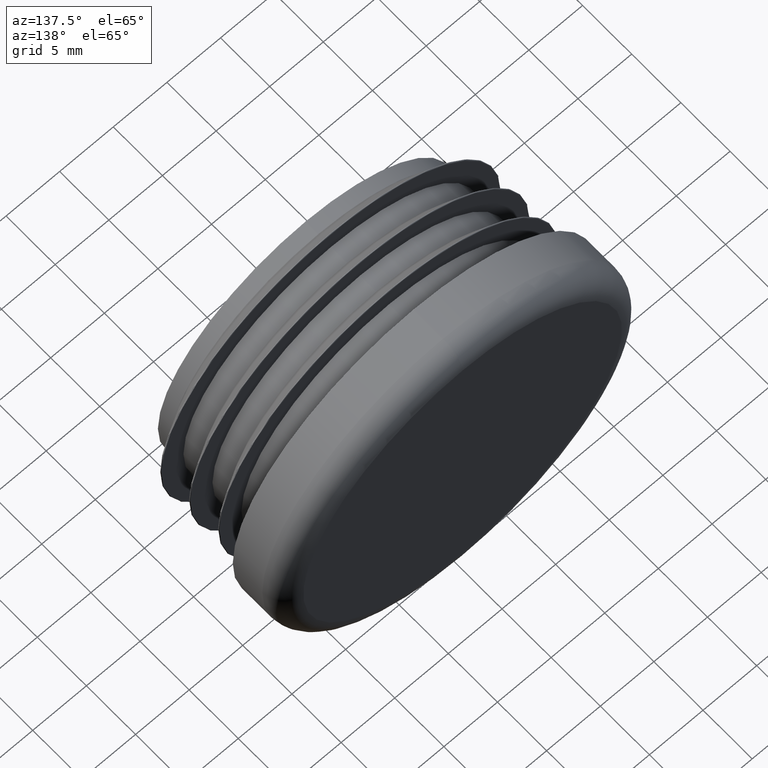
[diagram: clean part render]
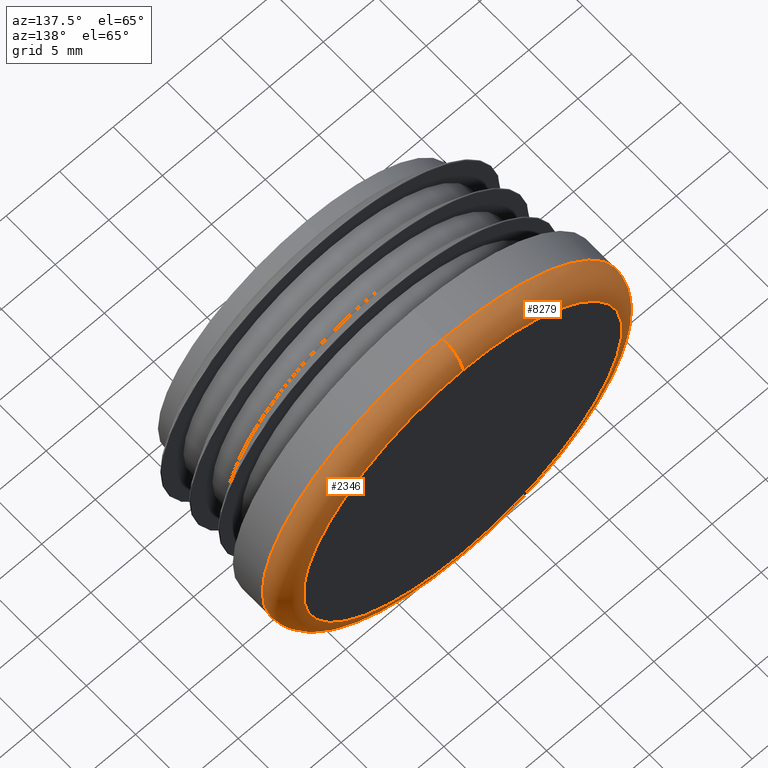
[diagram: same view with one multi-face feature highlighted, each face labeled with its STEP entity id]
A machine part, auxiliary view. The highlighted faces form ONE feature: a constant-radius fillet chain: 2 tangent blend faces with common blend radius 2 mm. The faces share edges in the B-rep.
Their STEP definitions:
[1] entity #8279 (Torus):
#10 = EDGE_LOOP ( 'NONE', ( #4776, #10278, #2202, #7090 ) ) ;
#101 = AXIS2_PLACEMENT_3D ( 'NONE', #623, #1616, #3421 ) ;
#321 = AXIS2_PLACEMENT_3D ( 'NONE', #9096, #9946, #2312 ) ;
#378 = DIRECTION ( 'NONE',  ( -1.000000000000000000, 0.000000000000000000, 0.000000000000000000 ) ) ;
#504 = EDGE_CURVE ( 'NONE', #12208, #5015, #625, .T. ) ;
#623 = CARTESIAN_POINT ( 'NONE',  ( 0.000000000000000000, 14.00000000000000000, 0.000000000000000000 ) ) ;
#625 = CIRCLE ( 'NONE', #3067, 2.000000000000000000 ) ;
#1086 = DIRECTION ( 'NONE',  ( 0.000000000000000000, 0.000000000000000000, 1.000000000000000000 ) ) ;
#1560 = CARTESIAN_POINT ( 'NONE',  ( 1.941065176648554701E-15, 16.00000000000000000, -14.84999999999999609 ) ) ;
#1616 = DIRECTION ( 'NONE',  ( 0.000000000000000000, 1.000000000000000000, 0.000000000000000000 ) ) ;
#2202 = ORIENTED_EDGE ( 'NONE', *, *, #504, .T. ) ;
#2292 = TOROIDAL_SURFACE ( 'NONE', #101, 14.84999999999999609, 2.000000000000000000 ) ;
#2295 = CARTESIAN_POINT ( 'NONE',  ( 0.000000000000000000, 16.00000000000000000, 0.000000000000000000 ) ) ;
#2312 = DIRECTION ( 'NONE',  ( 1.224646799147352468E-16, 0.000000000000000000, -1.000000000000000000 ) ) ;
#2967 = CARTESIAN_POINT ( 'NONE',  ( 0.000000000000000000, 14.00000000000000000, -16.84999999999999787 ) ) ;
#3057 = CIRCLE ( 'NONE', #11079, 16.84999999999999787 ) ;
#3067 = AXIS2_PLACEMENT_3D ( 'NONE', #10930, #378, #11849 ) ;
#3182 = VERTEX_POINT ( 'NONE', #1560 ) ;
#3421 = DIRECTION ( 'NONE',  ( 0.000000000000000000, 0.000000000000000000, 1.000000000000000000 ) ) ;
#3972 = DIRECTION ( 'NONE',  ( 0.000000000000000000, 1.000000000000000000, 0.000000000000000000 ) ) ;
#4146 = EDGE_CURVE ( 'NONE', #4533, #3182, #5230, .T. ) ;
#4240 = DIRECTION ( 'NONE',  ( 0.000000000000000000, 0.000000000000000000, 1.000000000000000000 ) ) ;
#4533 = VERTEX_POINT ( 'NONE', #2967 ) ;
#4776 = ORIENTED_EDGE ( 'NONE', *, *, #4146, .F. ) ;
#5015 = VERTEX_POINT ( 'NONE', #10395 ) ;
#5230 = CIRCLE ( 'NONE', #321, 2.000000000000000000 ) ;
#5844 = CARTESIAN_POINT ( 'NONE',  ( 0.000000000000000000, 14.00000000000000000, 0.000000000000000000 ) ) ;
#6135 = EDGE_CURVE ( 'NONE', #12208, #4533, #3057, .T. ) ;
#7090 = ORIENTED_EDGE ( 'NONE', *, *, #11282, .F. ) ;
#7760 = DIRECTION ( 'NONE',  ( -0.000000000000000000, -1.000000000000000000, -0.000000000000000000 ) ) ;
#8279 = ADVANCED_FACE ( 'NONE', ( #12148 ), #2292, .T. ) ;
#9096 = CARTESIAN_POINT ( 'NONE',  ( 1.818600496733819159E-15, 14.00000000000000000, -14.84999999999999609 ) ) ;
#9631 = AXIS2_PLACEMENT_3D ( 'NONE', #2295, #3972, #4240 ) ;
#9946 = DIRECTION ( 'NONE',  ( 1.000000000000000000, -0.000000000000000000, 1.224646799147353207E-16 ) ) ;
#10278 = ORIENTED_EDGE ( 'NONE', *, *, #6135, .F. ) ;
#10395 = CARTESIAN_POINT ( 'NONE',  ( 0.000000000000000000, 16.00000000000000000, 14.84999999999999609 ) ) ;
#10930 = CARTESIAN_POINT ( 'NONE',  ( 0.000000000000000000, 14.00000000000000000, 14.84999999999999609 ) ) ;
#11079 = AXIS2_PLACEMENT_3D ( 'NONE', #5844, #7760, #1086 ) ;
#11126 = CARTESIAN_POINT ( 'NONE',  ( 2.063529856563289455E-15, 14.00000000000000000, 16.84999999999999787 ) ) ;
#11192 = CIRCLE ( 'NONE', #9631, 14.84999999999999609 ) ;
#11282 = EDGE_CURVE ( 'NONE', #3182, #5015, #11192, .T. ) ;
#11849 = DIRECTION ( 'NONE',  ( 0.000000000000000000, 0.000000000000000000, 1.000000000000000000 ) ) ;
#12148 = FACE_OUTER_BOUND ( 'NONE', #10, .T. ) ;
#12208 = VERTEX_POINT ( 'NONE', #11126 ) ;
[2] entity #2346 (Torus):
#309 = TOROIDAL_SURFACE ( 'NONE', #8104, 14.84999999999999609, 2.000000000000000000 ) ;
#321 = AXIS2_PLACEMENT_3D ( 'NONE', #9096, #9946, #2312 ) ;
#378 = DIRECTION ( 'NONE',  ( -1.000000000000000000, 0.000000000000000000, 0.000000000000000000 ) ) ;
#504 = EDGE_CURVE ( 'NONE', #12208, #5015, #625, .T. ) ;
#618 = CARTESIAN_POINT ( 'NONE',  ( 0.000000000000000000, 16.00000000000000000, 0.000000000000000000 ) ) ;
#625 = CIRCLE ( 'NONE', #3067, 2.000000000000000000 ) ;
#637 = EDGE_CURVE ( 'NONE', #5015, #3182, #6044, .T. ) ;
#1447 = DIRECTION ( 'NONE',  ( 0.000000000000000000, 0.000000000000000000, 1.000000000000000000 ) ) ;
#1560 = CARTESIAN_POINT ( 'NONE',  ( 1.941065176648554701E-15, 16.00000000000000000, -14.84999999999999609 ) ) ;
#2211 = DIRECTION ( 'NONE',  ( -0.000000000000000000, -1.000000000000000000, -0.000000000000000000 ) ) ;
#2312 = DIRECTION ( 'NONE',  ( 1.224646799147352468E-16, 0.000000000000000000, -1.000000000000000000 ) ) ;
#2346 = ADVANCED_FACE ( 'NONE', ( #6020 ), #309, .T. ) ;
#2967 = CARTESIAN_POINT ( 'NONE',  ( 0.000000000000000000, 14.00000000000000000, -16.84999999999999787 ) ) ;
#3067 = AXIS2_PLACEMENT_3D ( 'NONE', #10930, #378, #11849 ) ;
#3182 = VERTEX_POINT ( 'NONE', #1560 ) ;
#3196 = DIRECTION ( 'NONE',  ( 0.000000000000000000, 0.000000000000000000, 1.000000000000000000 ) ) ;
#3463 = DIRECTION ( 'NONE',  ( 0.000000000000000000, 1.000000000000000000, 0.000000000000000000 ) ) ;
#3873 = AXIS2_PLACEMENT_3D ( 'NONE', #618, #3463, #1447 ) ;
#4146 = EDGE_CURVE ( 'NONE', #4533, #3182, #5230, .T. ) ;
#4533 = VERTEX_POINT ( 'NONE', #2967 ) ;
#5015 = VERTEX_POINT ( 'NONE', #10395 ) ;
#5108 = CARTESIAN_POINT ( 'NONE',  ( 0.000000000000000000, 14.00000000000000000, 0.000000000000000000 ) ) ;
#5230 = CIRCLE ( 'NONE', #321, 2.000000000000000000 ) ;
#5979 = DIRECTION ( 'NONE',  ( 0.000000000000000000, 1.000000000000000000, 0.000000000000000000 ) ) ;
#6020 = FACE_OUTER_BOUND ( 'NONE', #8742, .T. ) ;
#6044 = CIRCLE ( 'NONE', #3873, 14.84999999999999609 ) ;
#6629 = ORIENTED_EDGE ( 'NONE', *, *, #4146, .T. ) ;
#7614 = ORIENTED_EDGE ( 'NONE', *, *, #504, .F. ) ;
#8104 = AXIS2_PLACEMENT_3D ( 'NONE', #11682, #5979, #3196 ) ;
#8742 = EDGE_LOOP ( 'NONE', ( #10554, #6629, #9228, #7614 ) ) ;
#8890 = EDGE_CURVE ( 'NONE', #4533, #12208, #9222, .T. ) ;
#9096 = CARTESIAN_POINT ( 'NONE',  ( 1.818600496733819159E-15, 14.00000000000000000, -14.84999999999999609 ) ) ;
#9222 = CIRCLE ( 'NONE', #9261, 16.84999999999999787 ) ;
#9228 = ORIENTED_EDGE ( 'NONE', *, *, #637, .F. ) ;
#9261 = AXIS2_PLACEMENT_3D ( 'NONE', #5108, #2211, #11761 ) ;
#9946 = DIRECTION ( 'NONE',  ( 1.000000000000000000, -0.000000000000000000, 1.224646799147353207E-16 ) ) ;
#10395 = CARTESIAN_POINT ( 'NONE',  ( 0.000000000000000000, 16.00000000000000000, 14.84999999999999609 ) ) ;
#10554 = ORIENTED_EDGE ( 'NONE', *, *, #8890, .F. ) ;
#10930 = CARTESIAN_POINT ( 'NONE',  ( 0.000000000000000000, 14.00000000000000000, 14.84999999999999609 ) ) ;
#11126 = CARTESIAN_POINT ( 'NONE',  ( 2.063529856563289455E-15, 14.00000000000000000, 16.84999999999999787 ) ) ;
#11682 = CARTESIAN_POINT ( 'NONE',  ( 0.000000000000000000, 14.00000000000000000, 0.000000000000000000 ) ) ;
#11761 = DIRECTION ( 'NONE',  ( 0.000000000000000000, 0.000000000000000000, 1.000000000000000000 ) ) ;
#11849 = DIRECTION ( 'NONE',  ( 0.000000000000000000, 0.000000000000000000, 1.000000000000000000 ) ) ;
#12208 = VERTEX_POINT ( 'NONE', #11126 ) ;